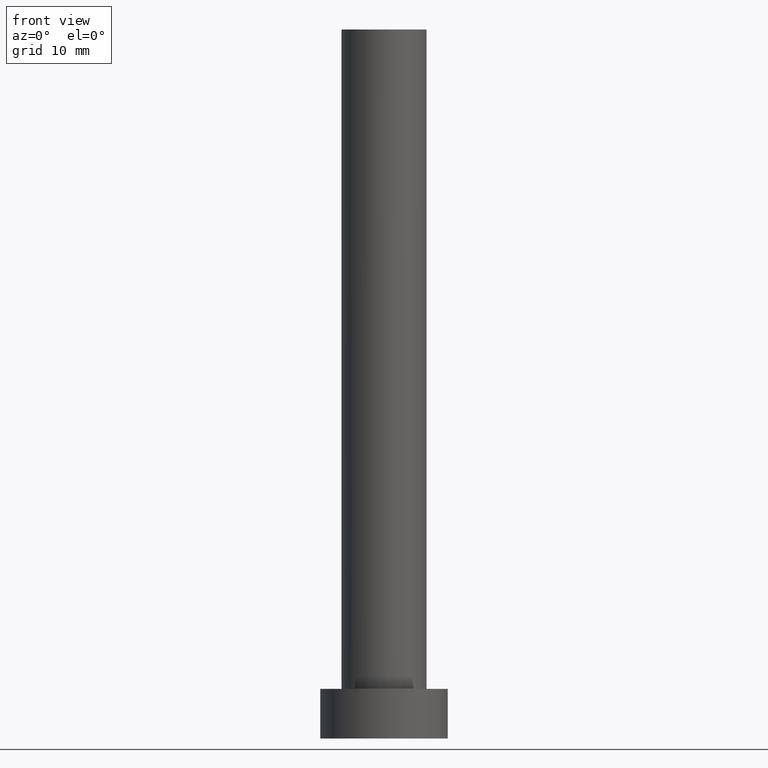
[diagram: clean part render]
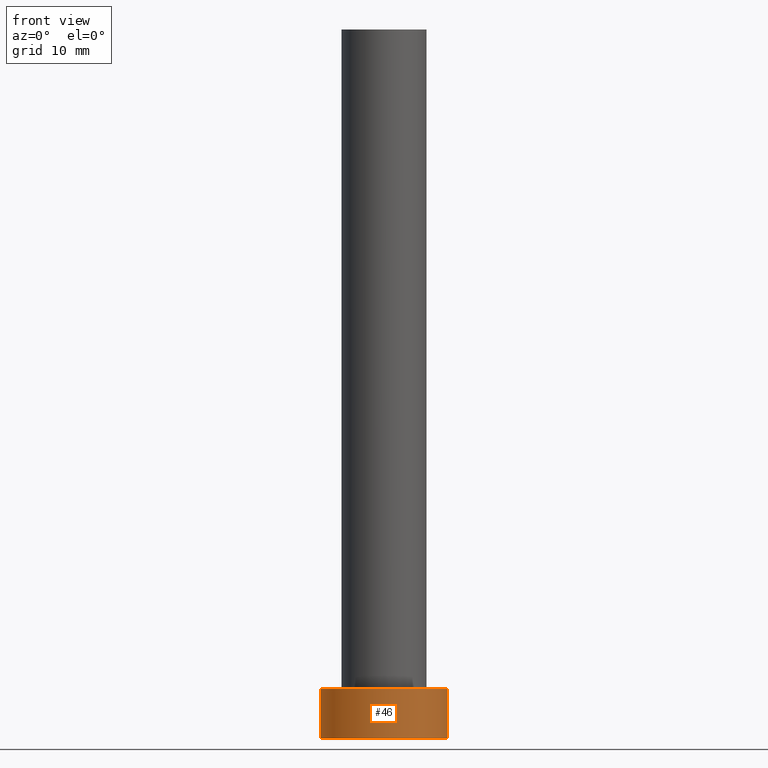
[diagram: same view with one face highlighted and labeled with its STEP entity id]
A machine part, front view. The second image highlights one B-rep face of the part: STEP entity #46.
In plain terms, the highlighted cylindrical surface (partial cylindrical patch) has radius 9 mm, axis along (-0, -0, -1).
Its self-contained STEP definition (entity closure, byte-faithful):
#3 = VERTEX_POINT ( 'NONE', #224 ) ;
#29 = ORIENTED_EDGE ( 'NONE', *, *, #221, .F. ) ;
#31 = DIRECTION ( 'NONE',  ( 0.000000000000000000, 0.000000000000000000, 1.000000000000000000 ) ) ;
#46 = ADVANCED_FACE ( 'NONE', ( #92 ), #165, .T. ) ;
#54 = EDGE_LOOP ( 'NONE', ( #29, #222, #144, #253 ) ) ;
#59 = DIRECTION ( 'NONE',  ( -1.000000000000000000, 0.000000000000000000, 0.000000000000000000 ) ) ;
#60 = CARTESIAN_POINT ( 'NONE',  ( 0.000000000000000000, 0.000000000000000000, 7.000000000000000000 ) ) ;
#69 = CARTESIAN_POINT ( 'NONE',  ( 9.000000000000000000, 1.102182119232617714E-15, 7.000000000000000000 ) ) ;
#74 = VERTEX_POINT ( 'NONE', #233 ) ;
#75 = DIRECTION ( 'NONE',  ( -0.000000000000000000, -0.000000000000000000, -1.000000000000000000 ) ) ;
#77 = DIRECTION ( 'NONE',  ( 1.000000000000000000, 0.000000000000000000, 0.000000000000000000 ) ) ;
#85 = CIRCLE ( 'NONE', #152, 9.000000000000000000 ) ;
#92 = FACE_OUTER_BOUND ( 'NONE', #54, .T. ) ;
#96 = CIRCLE ( 'NONE', #240, 9.000000000000000000 ) ;
#104 = CARTESIAN_POINT ( 'NONE',  ( -9.000000000000000000, 0.000000000000000000, 7.000000000000000000 ) ) ;
#107 = VERTEX_POINT ( 'NONE', #69 ) ;
#115 = CARTESIAN_POINT ( 'NONE',  ( 9.000000000000000000, 1.102182119232617714E-15, 7.000000000000000000 ) ) ;
#144 = ORIENTED_EDGE ( 'NONE', *, *, #201, .T. ) ;
#149 = CARTESIAN_POINT ( 'NONE',  ( 0.000000000000000000, 0.000000000000000000, 0.000000000000000000 ) ) ;
#152 = AXIS2_PLACEMENT_3D ( 'NONE', #60, #31, #77 ) ;
#165 = CYLINDRICAL_SURFACE ( 'NONE', #203, 9.000000000000000000 ) ;
#173 = EDGE_CURVE ( 'NONE', #3, #74, #96, .T. ) ;
#186 = LINE ( 'NONE', #207, #235 ) ;
#196 = EDGE_CURVE ( 'NONE', #247, #107, #85, .T. ) ;
#198 = DIRECTION ( 'NONE',  ( -0.000000000000000000, -0.000000000000000000, -1.000000000000000000 ) ) ;
#201 = EDGE_CURVE ( 'NONE', #247, #3, #186, .T. ) ;
#203 = AXIS2_PLACEMENT_3D ( 'NONE', #246, #75, #59 ) ;
#206 = DIRECTION ( 'NONE',  ( 1.000000000000000000, 0.000000000000000000, 0.000000000000000000 ) ) ;
#207 = CARTESIAN_POINT ( 'NONE',  ( -9.000000000000000000, 0.000000000000000000, 7.000000000000000000 ) ) ;
#213 = LINE ( 'NONE', #115, #225 ) ;
#221 = EDGE_CURVE ( 'NONE', #107, #74, #213, .T. ) ;
#222 = ORIENTED_EDGE ( 'NONE', *, *, #196, .F. ) ;
#224 = CARTESIAN_POINT ( 'NONE',  ( -9.000000000000000000, 0.000000000000000000, 0.000000000000000000 ) ) ;
#225 = VECTOR ( 'NONE', #198, 1000.000000000000000 ) ;
#227 = DIRECTION ( 'NONE',  ( 0.000000000000000000, 0.000000000000000000, 1.000000000000000000 ) ) ;
#229 = DIRECTION ( 'NONE',  ( -0.000000000000000000, -0.000000000000000000, -1.000000000000000000 ) ) ;
#233 = CARTESIAN_POINT ( 'NONE',  ( 9.000000000000000000, 1.102182119232617714E-15, 0.000000000000000000 ) ) ;
#235 = VECTOR ( 'NONE', #229, 1000.000000000000000 ) ;
#240 = AXIS2_PLACEMENT_3D ( 'NONE', #149, #227, #206 ) ;
#246 = CARTESIAN_POINT ( 'NONE',  ( 0.000000000000000000, 0.000000000000000000, 7.000000000000000000 ) ) ;
#247 = VERTEX_POINT ( 'NONE', #104 ) ;
#253 = ORIENTED_EDGE ( 'NONE', *, *, #173, .T. ) ;